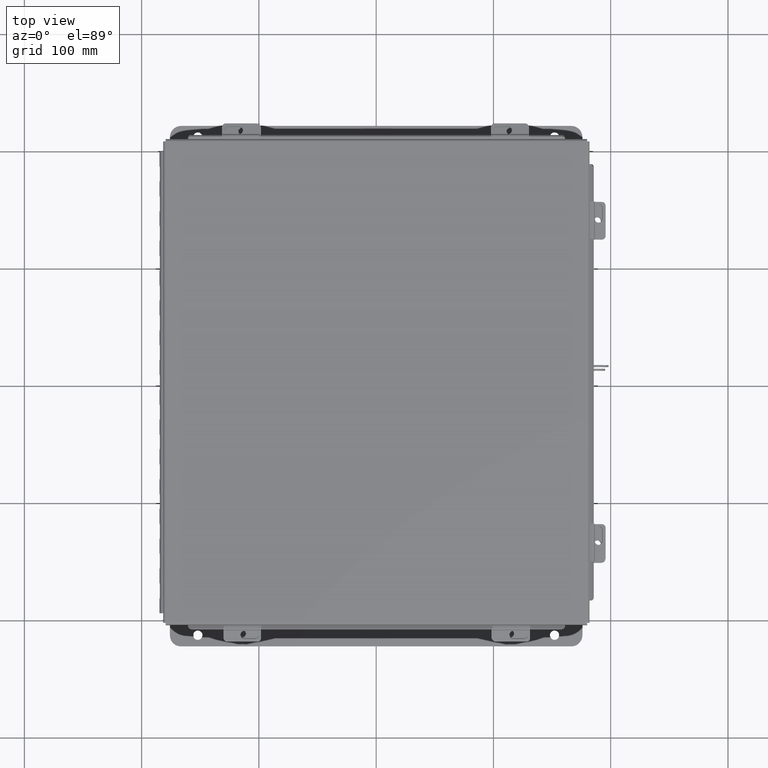
[diagram: clean part render]
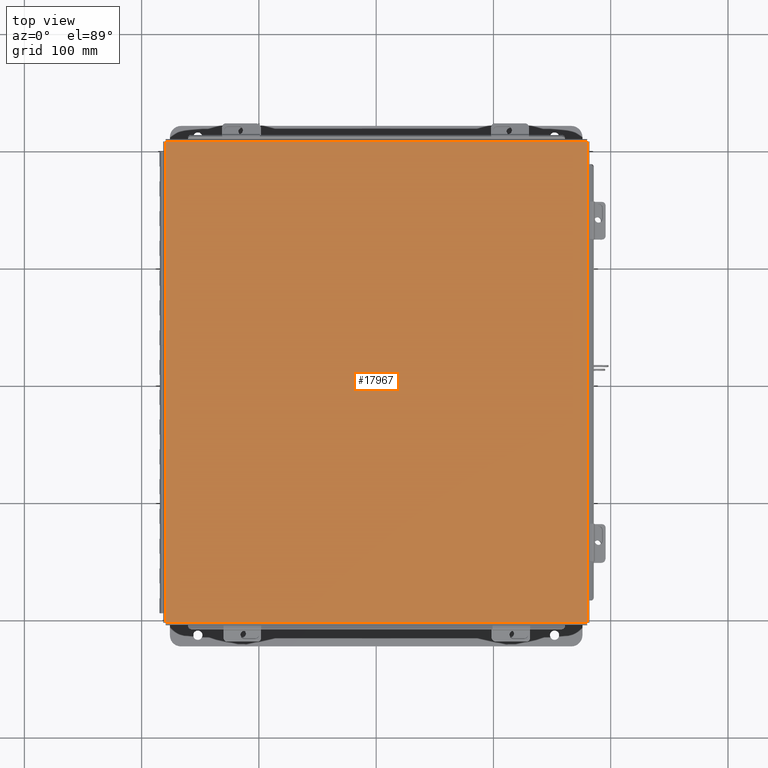
[diagram: same view with one face highlighted and labeled with its STEP entity id]
A machine part, top view. The second image highlights one B-rep face of the part: STEP entity #17967.
In plain terms, the highlighted planar face has unit normal (-0, -0, 1).
Its self-contained STEP definition (entity closure, byte-faithful):
#164 = DIRECTION ( 'NONE',  ( -1.000000000000000000, -3.215975411700707400E-030, -0.0000000000000000000 ) ) ;
#694 = LINE ( 'NONE', #15693, #9016 ) ;
#1481 = LINE ( 'NONE', #13060, #13422 ) ;
#2059 = EDGE_CURVE ( 'NONE', #5281, #6375, #3371, .T. ) ;
#2154 = DIRECTION ( 'NONE',  ( 1.000000000000000000, 3.215975411700707400E-030, -0.0000000000000000000 ) ) ;
#2258 = ORIENTED_EDGE ( 'NONE', *, *, #15738, .T. ) ;
#3371 = LINE ( 'NONE', #16508, #19391 ) ;
#4147 = VECTOR ( 'NONE', #6933, 39.37007874015748100 ) ;
#4267 = CARTESIAN_POINT ( 'NONE',  ( -8.537024980200822600E-018, 0.0000000000000000000, -0.07470000000000015500 ) ) ;
#5274 = AXIS2_PLACEMENT_3D ( 'NONE', #4267, #15139, #5842 ) ;
#5281 = VERTEX_POINT ( 'NONE', #14652 ) ;
#5842 = DIRECTION ( 'NONE',  ( -1.000000000000000000, -3.215975411700707400E-030, 0.0000000000000000000 ) ) ;
#6375 = VERTEX_POINT ( 'NONE', #13453 ) ;
#6933 = DIRECTION ( 'NONE',  ( -3.166671605124525800E-030, -1.000000000000000000, -1.853823127269377700E-029 ) ) ;
#7893 = DIRECTION ( 'NONE',  ( 3.158679887152019100E-030, 1.000000000000000000, -8.208677865575832000E-017 ) ) ;
#9016 = VECTOR ( 'NONE', #7893, 39.37007874015748100 ) ;
#9445 = VERTEX_POINT ( 'NONE', #12020 ) ;
#9479 = CARTESIAN_POINT ( 'NONE',  ( -7.068550000000025000, 8.068550000000000100, -0.07470000000000015500 ) ) ;
#10861 = EDGE_CURVE ( 'NONE', #6375, #12315, #694, .T. ) ;
#12020 = CARTESIAN_POINT ( 'NONE',  ( 7.068550000000009900, 8.068550000000000100, -0.07470000000000015500 ) ) ;
#12315 = VERTEX_POINT ( 'NONE', #9479 ) ;
#12391 = FACE_OUTER_BOUND ( 'NONE', #17067, .T. ) ;
#13060 = CARTESIAN_POINT ( 'NONE',  ( -7.074478932188157800, 8.068550000000000100, -0.07470000000000015500 ) ) ;
#13422 = VECTOR ( 'NONE', #2154, 39.37007874015748100 ) ;
#13453 = CARTESIAN_POINT ( 'NONE',  ( -7.068550000000025000, -8.068549999999998300, -0.07469999999999907300 ) ) ;
#13562 = PLANE ( 'NONE',  #5274 ) ;
#14267 = ORIENTED_EDGE ( 'NONE', *, *, #16921, .T. ) ;
#14652 = CARTESIAN_POINT ( 'NONE',  ( 7.068550000000009900, -8.068549999999998300, -0.07470000000000015500 ) ) ;
#15076 = LINE ( 'NONE', #17769, #4147 ) ;
#15139 = DIRECTION ( 'NONE',  ( 5.938065620492508100E-059, -1.846427556282924300E-029, -1.000000000000000000 ) ) ;
#15693 = CARTESIAN_POINT ( 'NONE',  ( -7.068550000000025000, -8.074478932188133800, -0.07469999999999907300 ) ) ;
#15738 = EDGE_CURVE ( 'NONE', #12315, #9445, #1481, .T. ) ;
#16297 = ORIENTED_EDGE ( 'NONE', *, *, #10861, .T. ) ;
#16508 = CARTESIAN_POINT ( 'NONE',  ( 7.074478932188142700, -8.068549999999998300, -0.07470000000000015500 ) ) ;
#16921 = EDGE_CURVE ( 'NONE', #9445, #5281, #15076, .T. ) ;
#17067 = EDGE_LOOP ( 'NONE', ( #2258, #14267, #17117, #16297 ) ) ;
#17117 = ORIENTED_EDGE ( 'NONE', *, *, #2059, .T. ) ;
#17769 = CARTESIAN_POINT ( 'NONE',  ( 7.068550000000009900, 8.074478932188135600, -0.07470000000000015500 ) ) ;
#17967 = ADVANCED_FACE ( 'NONE', ( #12391 ), #13562, .T. ) ;
#19391 = VECTOR ( 'NONE', #164, 39.37007874015748100 ) ;